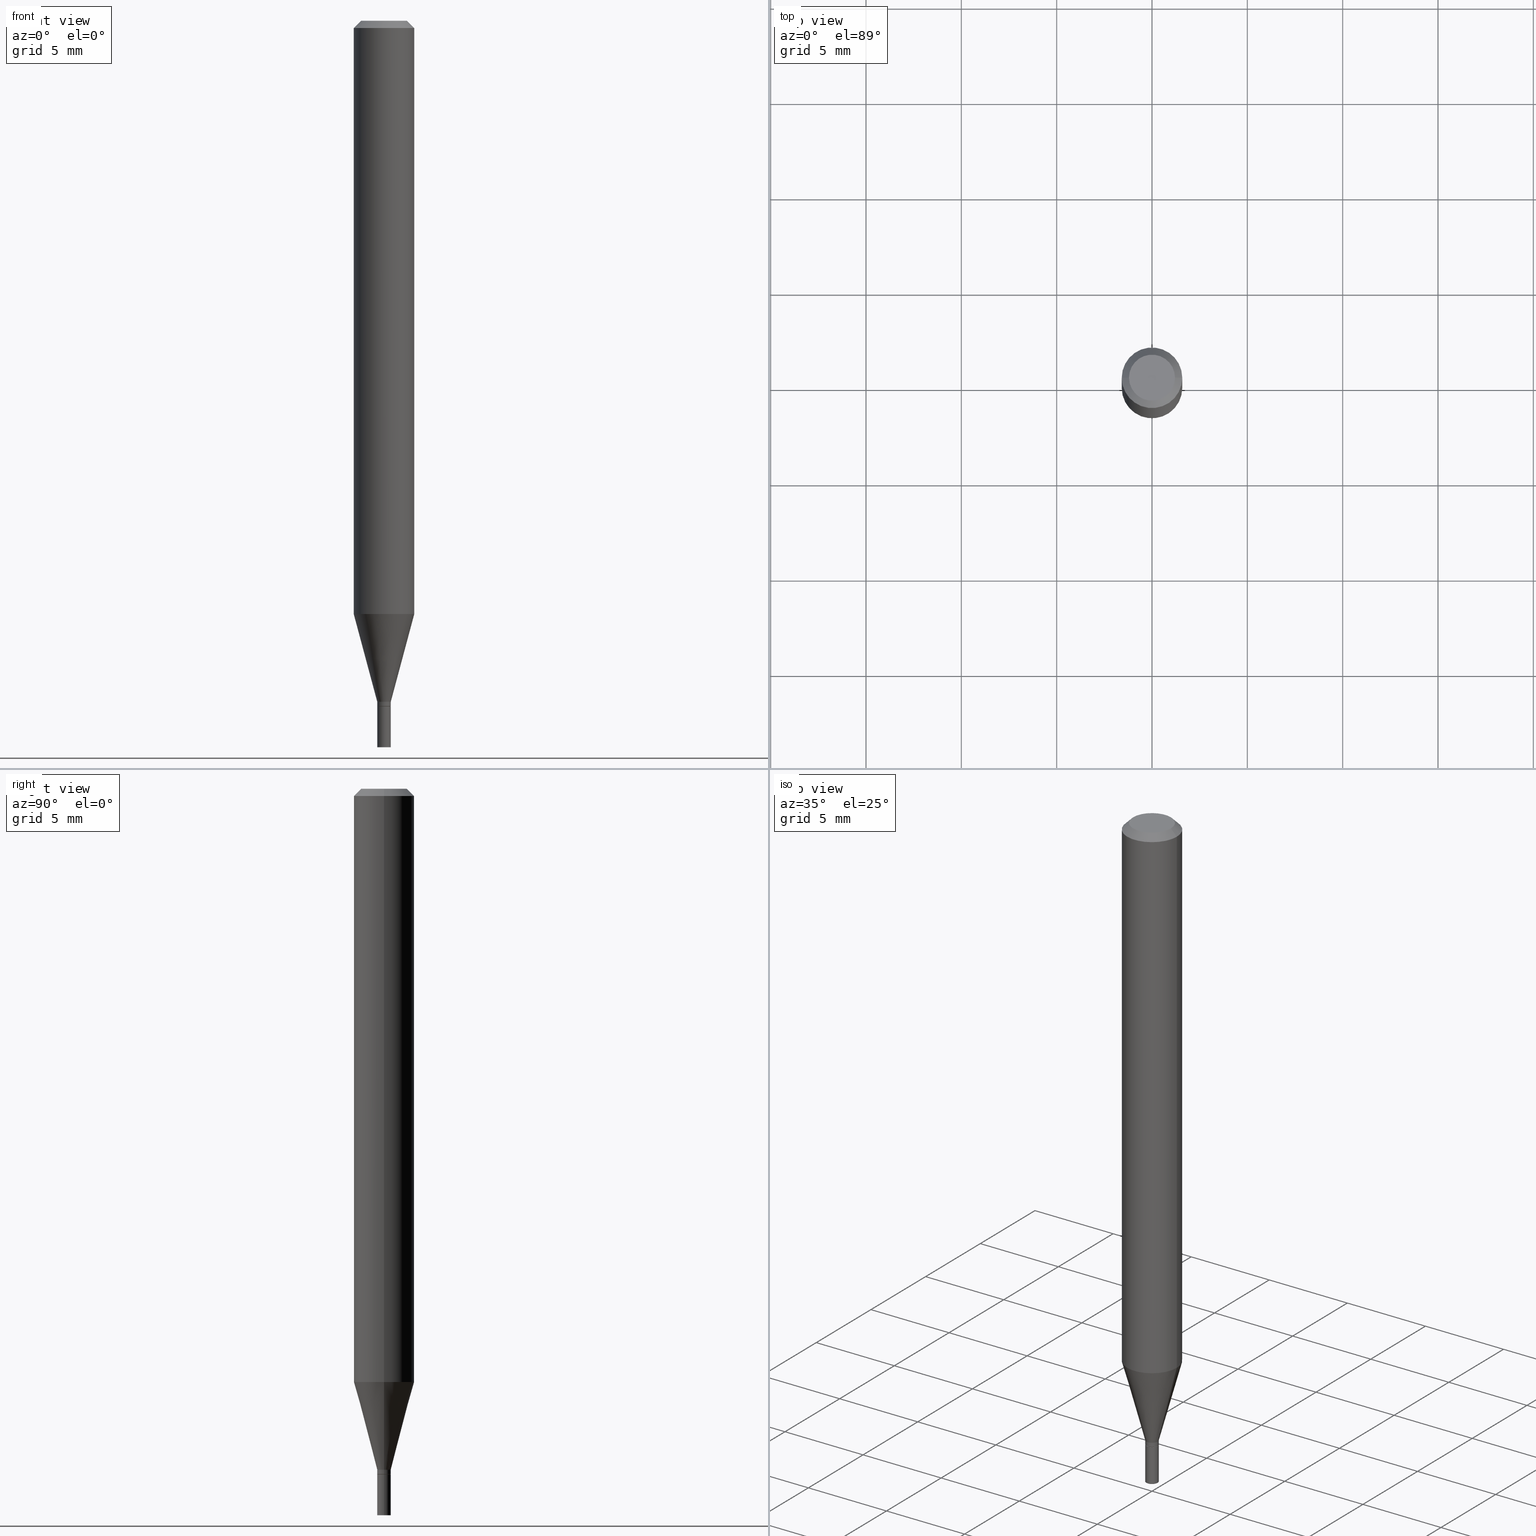
[diagram: canonical four-view strip — front | top / right | iso, engineering-drawing reading convention]
A machine part, canonical four-view strip (front | top / right | iso — engineering-drawing reading convention). The complete STEP part file that produces these views, byte-faithful:
ISO-10303-21;
HEADER;
FILE_DESCRIPTION (( 'STEP AP203' ),
    '1' );
FILE_NAME ('01179.STEP',
    '2024-03-19T23:42:54',
    ( '' ),
    ( '' ),
    'SwSTEP 2.0',
    'SolidWorks 2023',
    '' );
FILE_SCHEMA (( 'CONFIG_CONTROL_DESIGN' ));
ENDSEC;

DATA;
#1 = AXIS2_PLACEMENT_3D ( 'NONE', #114, #148, #203 ) ;
#2 = DIRECTION ( 'NONE',  ( 1.000000000000000000, -6.982962677686296687E-15, 0.000000000000000000 ) ) ;
#3 = ADVANCED_FACE ( 'NONE', ( #39 ), #116, .F. ) ;
#4 = CARTESIAN_POINT ( 'NONE',  ( -0.04749999999999999362, 3.578768372314205575E-16, -2.863788329398987133E-16 ) ) ;
#5 = ORIENTED_EDGE ( 'NONE', *, *, #105, .F. ) ;
#6 = APPROVAL_DATE_TIME ( #113, #305 ) ;
#7 = EDGE_CURVE ( 'NONE', #172, #240, #175, .T. ) ;
#8 = LINE ( 'NONE', #44, #34 ) ;
#9 = DATE_AND_TIME ( #35, #139 ) ;
#10 = CARTESIAN_POINT ( 'NONE',  ( -0.01400000000000000203, 9.947598300641404042E-17, -6.886509126356868606E-31 ) ) ;
#11 = CONICAL_SURFACE ( 'NONE', #334, 0.06250000000000000000, 0.7853981633974579379 ) ;
#12 = CARTESIAN_POINT ( 'NONE',  ( 0.000000000000000000, 0.000000000000000000, 0.000000000000000000 ) ) ;
#13 = CC_DESIGN_PERSON_AND_ORGANIZATION_ASSIGNMENT ( #463, #354, ( #444 ) ) ;
#14 = CARTESIAN_POINT ( 'NONE',  ( -0.06250000000000000000, -3.832959843676702294E-15, -1.224995535832909876 ) ) ;
#15 = DIRECTION ( 'NONE',  ( 0.7071067811865642261, -2.468850131082431399E-15, 0.7071067811865309194 ) ) ;
#16 = VERTEX_POINT ( 'NONE', #259 ) ;
#17 = AXIS2_PLACEMENT_3D ( 'NONE', #368, #71, #333 ) ;
#18 = AXIS2_PLACEMENT_3D ( 'NONE', #466, #399, #359 ) ;
#19 = EDGE_CURVE ( 'NONE', #153, #350, #237, .T. ) ;
#20 = CARTESIAN_POINT ( 'NONE',  ( 3.668203209277705088E-31, -5.237222008264718399E-17, -0.01499999999999999944 ) ) ;
#21 = ORIENTED_EDGE ( 'NONE', *, *, #219, .T. ) ;
#22 = CARTESIAN_POINT ( 'NONE',  ( -0.01399999999999992396, -4.842715852126059704E-15, -1.415500000000000203 ) ) ;
#23 = ORIENTED_EDGE ( 'NONE', *, *, #266, .F. ) ;
#24 = UNCERTAINTY_MEASURE_WITH_UNIT (LENGTH_MEASURE( 1.000000000000000082E-05 ), #241, 'distance_accuracy_value', 'NONE');
#25 = PLANE ( 'NONE',  #416 ) ;
#26 = ORIENTED_EDGE ( 'NONE', *, *, #142, .F. ) ;
#27 = AXIS2_PLACEMENT_3D ( 'NONE', #272, #346, #73 ) ;
#28 = CIRCLE ( 'NONE', #27, 0.01400000000000000203 ) ;
#29 = FACE_OUTER_BOUND ( 'NONE', #315, .T. ) ;
#30 = EDGE_CURVE ( 'NONE', #153, #240, #8, .T. ) ;
#31 = ORIENTED_EDGE ( 'NONE', *, *, #76, .F. ) ;
#32 = ORIENTED_EDGE ( 'NONE', *, *, #332, .F. ) ;
#33 = CONICAL_SURFACE ( 'NONE', #80, 0.06250000000000000000, 0.7853981633974579379 ) ;
#34 = VECTOR ( 'NONE', #402, 39.37007874015747433 ) ;
#35 = CALENDAR_DATE ( 2024, 19, 3 ) ;
#36 = DIRECTION ( 'NONE',  ( -2.445468806185136877E-29, 3.491481338843145188E-15, 1.000000000000000000 ) ) ;
#37 = DIRECTION ( 'NONE',  ( -2.445468806185136877E-29, 3.491481338843145188E-15, 1.000000000000000000 ) ) ;
#38 = DIRECTION ( 'NONE',  ( -2.445468806185136597E-29, 3.491481338843145583E-15, 1.000000000000000000 ) ) ;
#39 = FACE_OUTER_BOUND ( 'NONE', #61, .T. ) ;
#40 = CALENDAR_DATE ( 2024, 19, 3 ) ;
#41 = DIRECTION ( 'NONE',  ( -2.445468806185136597E-29, 3.491481338843145583E-15, 1.000000000000000000 ) ) ;
#42 = AXIS2_PLACEMENT_3D ( 'NONE', #112, #254, #397 ) ;
#43 = CONICAL_SURFACE ( 'NONE', #81, 0.01399999999999992223, 0.2617993877991500740 ) ;
#44 = CARTESIAN_POINT ( 'NONE',  ( -0.01399999999999992223, -4.809546779407050347E-15, -1.406000000000000139 ) ) ;
#45 =( NAMED_UNIT ( * ) SI_UNIT ( $, .STERADIAN. ) SOLID_ANGLE_UNIT ( ) );
#46 = CARTESIAN_POINT ( 'NONE',  ( -0.06250000000000000000, 4.440892098500626162E-16, -3.074334431409316114E-30 ) ) ;
#47 = APPLICATION_CONTEXT ( 'configuration controlled 3d designs of mechanical parts and assemblies' ) ;
#48 = CARTESIAN_POINT ( 'NONE',  ( 2.995688370595427801E-29, -4.277049053526764910E-15, -1.224995535832909876 ) ) ;
#49 = DIRECTION ( 'NONE',  ( 1.000000000000000000, -6.982962677686267499E-15, 4.852736867747366768E-29 ) ) ;
#50 = FACE_OUTER_BOUND ( 'NONE', #341, .T. ) ;
#51 = LINE ( 'NONE', #413, #432 ) ;
#52 = EDGE_LOOP ( 'NONE', ( #62, #127, #431, #162 ) ) ;
#53 = DIRECTION ( 'NONE',  ( -2.445468806185136597E-29, 3.491481338843145583E-15, 1.000000000000000000 ) ) ;
#54 = AXIS2_PLACEMENT_3D ( 'NONE', #12, #53, #163 ) ;
#55 = ADVANCED_FACE ( 'NONE', ( #187 ), #324, .T. ) ;
#56 = CC_DESIGN_SECURITY_CLASSIFICATION ( #302, ( #444 ) ) ;
#57 = DIRECTION ( 'NONE',  ( 1.000000000000000000, -6.982962677686232790E-15, 0.000000000000000000 ) ) ;
#58 = EDGE_CURVE ( 'NONE', #247, #375, #79, .T. ) ;
#59 = PRODUCT_RELATED_PRODUCT_CATEGORY ( 'detail', '', ( #90 ) ) ;
#60 = CARTESIAN_POINT ( 'NONE',  ( 0.06250000000000000000, -4.364351673553916694E-16, 3.047610484872459871E-30 ) ) ;
#61 = EDGE_LOOP ( 'NONE', ( #390, #394 ) ) ;
#62 = ORIENTED_EDGE ( 'NONE', *, *, #58, .F. ) ;
#63 = ORIENTED_EDGE ( 'NONE', *, *, #389, .T. ) ;
#64 = ADVANCED_BREP_SHAPE_REPRESENTATION ( '01179', ( #151, #456, #312 ), #245 ) ;
#65 = ORIENTED_EDGE ( 'NONE', *, *, #215, .T. ) ;
#66 = VERTEX_POINT ( 'NONE', #442 ) ;
#67 = APPROVAL_ROLE ( '' ) ;
#68 = DIRECTION ( 'NONE',  ( -2.445468806185136597E-29, 3.491481338843145583E-15, 1.000000000000000000 ) ) ;
#69 = VECTOR ( 'NONE', #299, 39.37007874015747433 ) ;
#70 = CC_DESIGN_APPROVAL ( #411, ( #444 ) ) ;
#71 = DIRECTION ( 'NONE',  ( -2.445468806185136597E-29, 3.491481338843145583E-15, 1.000000000000000000 ) ) ;
#72 = PERSON_AND_ORGANIZATION ( #387, #274 ) ;
#73 = DIRECTION ( 'NONE',  ( 1.000000000000000000, -6.982962677686262766E-15, 0.000000000000000000 ) ) ;
#74 = CARTESIAN_POINT ( 'NONE',  ( 7.003305027062207074E-45, -9.998863510493265527E-31, -2.863788329398962481E-16 ) ) ;
#75 = DIRECTION ( 'NONE',  ( 1.000000000000000000, -6.982962677686296687E-15, 0.000000000000000000 ) ) ;
#76 = EDGE_CURVE ( 'NONE', #129, #16, #366, .T. ) ;
#77 = DIRECTION ( 'NONE',  ( -2.445468806185136597E-29, 3.491481338843145583E-15, 1.000000000000000000 ) ) ;
#78 = COORDINATED_UNIVERSAL_TIME_OFFSET ( 5, 0, .BEHIND. ) ;
#79 = CIRCLE ( 'NONE', #137, 0.04749999999999999362 ) ;
#80 = AXIS2_PLACEMENT_3D ( 'NONE', #20, #345, #414 ) ;
#81 = AXIS2_PLACEMENT_3D ( 'NONE', #256, #380, #363 ) ;
#82 = DIRECTION ( 'NONE',  ( 1.000000000000000000, -6.982962677686266711E-15, 4.876176775795935232E-29 ) ) ;
#83 = APPLICATION_PROTOCOL_DEFINITION ( 'international standard', 'config_control_design', 1994, #94 ) ;
#84 = ORIENTED_EDGE ( 'NONE', *, *, #415, .T. ) ;
#85 = EDGE_CURVE ( 'NONE', #240, #168, #263, .T. ) ;
#86 = CARTESIAN_POINT ( 'NONE',  ( 3.462783829558154044E-29, -4.943937575801894533E-15, -1.416000000000000147 ) ) ;
#87 = CONICAL_SURFACE ( 'NONE', #147, 0.01399999999999992223, 0.2617993877991500740 ) ;
#88 = DIRECTION ( 'NONE',  ( 2.438088387897960049E-29, -3.491481338843145188E-15, -1.000000000000000000 ) ) ;
#89 = LOCAL_TIME ( 19, 42, 54.00000000000000000, #78 ) ;
#90 = PRODUCT ( '01179', '01179', '', ( #429 ) ) ;
#91 = CYLINDRICAL_SURFACE ( 'NONE', #54, 0.06250000000000000000 ) ;
#92 = ORIENTED_EDGE ( 'NONE', *, *, #210, .F. ) ;
#93 = DIRECTION ( 'NONE',  ( -2.445468806185136597E-29, 3.491481338843145583E-15, 1.000000000000000000 ) ) ;
#94 = APPLICATION_CONTEXT ( 'configuration controlled 3d designs of mechanical parts and assemblies' ) ;
#95 = LINE ( 'NONE', #408, #96 ) ;
#96 = VECTOR ( 'NONE', #450, 39.37007874015748854 ) ;
#97 = CARTESIAN_POINT ( 'NONE',  ( 0.000000000000000000, 0.000000000000000000, 0.000000000000000000 ) ) ;
#98 = ORIENTED_EDGE ( 'NONE', *, *, #58, .T. ) ;
#99 = CC_DESIGN_PERSON_AND_ORGANIZATION_ASSIGNMENT ( #398, #365, ( #302 ) ) ;
#100 = CARTESIAN_POINT ( 'NONE',  ( 0.000000000000000000, 0.000000000000000000, 0.000000000000000000 ) ) ;
#101 = VERTEX_POINT ( 'NONE', #122 ) ;
#102 = ADVANCED_FACE ( 'NONE', ( #284 ), #343, .T. ) ;
#103 = ORIENTED_EDGE ( 'NONE', *, *, #19, .T. ) ;
#104 = CIRCLE ( 'NONE', #404, 0.01350000000000000158 ) ;
#105 = EDGE_CURVE ( 'NONE', #455, #351, #433, .T. ) ;
#106 = ORIENTED_EDGE ( 'NONE', *, *, #182, .T. ) ;
#107 = CALENDAR_DATE ( 2024, 19, 3 ) ;
#108 = DIRECTION ( 'NONE',  ( -0.7071067811865542341, 2.468850131082328058E-15, -0.7071067811865405783 ) ) ;
#109 = ORIENTED_EDGE ( 'NONE', *, *, #85, .T. ) ;
#110 = APPROVAL_STATUS ( 'not_yet_approved' ) ;
#111 = CYLINDRICAL_SURFACE ( 'NONE', #1, 0.06250000000000000000 ) ;
#112 = CARTESIAN_POINT ( 'NONE',  ( 3.462783829558154044E-29, -4.943937575801894533E-15, -1.416000000000000147 ) ) ;
#113 = DATE_AND_TIME ( #188, #335 ) ;
#114 = CARTESIAN_POINT ( 'NONE',  ( 0.000000000000000000, 0.000000000000000000, 0.000000000000000000 ) ) ;
#115 = EDGE_CURVE ( 'NONE', #350, #153, #451, .T. ) ;
#116 = PLANE ( 'NONE',  #140 ) ;
#117 = ORIENTED_EDGE ( 'NONE', *, *, #403, .F. ) ;
#118 = DATE_AND_TIME ( #435, #252 ) ;
#119 = VECTOR ( 'NONE', #37, 39.37007874015748143 ) ;
#120 = DIRECTION ( 'NONE',  ( -2.445468806185136877E-29, 3.491481338843145188E-15, 1.000000000000000000 ) ) ;
#121 = EDGE_CURVE ( 'NONE', #240, #172, #278, .T. ) ;
#122 = CARTESIAN_POINT ( 'NONE',  ( -0.01350000000000000158, -4.845365079300170905E-15, -1.416000000000000147 ) ) ;
#123 = CC_DESIGN_DATE_AND_TIME_ASSIGNMENT ( #118, #213, ( #302 ) ) ;
#124 = DIRECTION ( 'NONE',  ( 1.000000000000000000, -6.982962677686296687E-15, 0.000000000000000000 ) ) ;
#125 = CIRCLE ( 'NONE', #205, 0.01400000000000000203 ) ;
#126 = DIRECTION ( 'NONE',  ( -2.445468806185136597E-29, 3.491481338843145583E-15, 1.000000000000000000 ) ) ;
#127 = ORIENTED_EDGE ( 'NONE', *, *, #309, .T. ) ;
#128 = DIRECTION ( 'NONE',  ( -2.445468806185136597E-29, 3.491481338843145583E-15, 1.000000000000000000 ) ) ;
#129 = VERTEX_POINT ( 'NONE', #156 ) ;
#130 = FACE_OUTER_BOUND ( 'NONE', #149, .T. ) ;
#131 = CARTESIAN_POINT ( 'NONE',  ( -0.06250000000000000000, -1.720621426954643378E-15, -0.01499999999999999944 ) ) ;
#132 = ORIENTED_EDGE ( 'NONE', *, *, #85, .F. ) ;
#133 = AXIS2_PLACEMENT_3D ( 'NONE', #209, #38, #249 ) ;
#134 = FACE_OUTER_BOUND ( 'NONE', #206, .T. ) ;
#135 = DIRECTION ( 'NONE',  ( -2.445468806185136597E-29, 3.491481338843145583E-15, 1.000000000000000000 ) ) ;
#136 = EDGE_LOOP ( 'NONE', ( #465, #103, #191, #384 ) ) ;
#137 = AXIS2_PLACEMENT_3D ( 'NONE', #437, #77, #223 ) ;
#138 = AXIS2_PLACEMENT_3D ( 'NONE', #74, #126, #49 ) ;
#139 = LOCAL_TIME ( 19, 42, 54.00000000000000000, #320 ) ;
#140 = AXIS2_PLACEMENT_3D ( 'NONE', #296, #448, #364 ) ;
#141 = ADVANCED_FACE ( 'NONE', ( #212 ), #357, .F. ) ;
#142 = EDGE_CURVE ( 'NONE', #375, #247, #310, .T. ) ;
#143 = DIRECTION ( 'NONE',  ( 1.000000000000000000, -6.982962677686301420E-15, 0.000000000000000000 ) ) ;
#144 = ORIENTED_EDGE ( 'NONE', *, *, #115, .T. ) ;
#145 = CC_DESIGN_DATE_AND_TIME_ASSIGNMENT ( #9, #438, ( #270 ) ) ;
#146 = APPROVAL_STATUS ( 'not_yet_approved' ) ;
#147 = AXIS2_PLACEMENT_3D ( 'NONE', #197, #344, #57 ) ;
#148 = DIRECTION ( 'NONE',  ( -2.445468806185136597E-29, 3.491481338843145583E-15, 1.000000000000000000 ) ) ;
#149 = EDGE_LOOP ( 'NONE', ( #273, #26, #63, #428 ) ) ;
#150 = DIRECTION ( 'NONE',  ( -2.445468806185136597E-29, 3.491481338843145583E-15, 1.000000000000000000 ) ) ;
#151 = MANIFOLD_SOLID_BREP ( 'Body-Move/Copy2[1]', #222 ) ;
#152 = PERSON_AND_ORGANIZATION ( #387, #274 ) ;
#153 = VERTEX_POINT ( 'NONE', #231 ) ;
#154 = AXIS2_PLACEMENT_3D ( 'NONE', #349, #68, #283 ) ;
#155 = LOCAL_TIME ( 19, 42, 54.00000000000000000, #426 ) ;
#156 = CARTESIAN_POINT ( 'NONE',  ( 0.01400000000000000203, -5.334983485752326321E-15, -1.500000000000000222 ) ) ;
#157 = AXIS2_PLACEMENT_3D ( 'NONE', #328, #330, #183 ) ;
#158 = LINE ( 'NONE', #452, #196 ) ;
#159 = FACE_OUTER_BOUND ( 'NONE', #202, .T. ) ;
#160 = AXIS2_PLACEMENT_3D ( 'NONE', #186, #217, #143 ) ;
#161 = CARTESIAN_POINT ( 'NONE',  ( 0.06250000000000000000, -4.713484220882155791E-15, -1.224995535832909876 ) ) ;
#162 = ORIENTED_EDGE ( 'NONE', *, *, #389, .F. ) ;
#163 = DIRECTION ( 'NONE',  ( 1.000000000000000000, -6.982962677686266711E-15, 4.876176775795935793E-29 ) ) ;
#164 = EDGE_CURVE ( 'NONE', #350, #172, #192, .T. ) ;
#165 = CARTESIAN_POINT ( 'NONE',  ( 3.462783829558154044E-29, -4.943937575801894533E-15, -1.416000000000000147 ) ) ;
#166 = VERTEX_POINT ( 'NONE', #22 ) ;
#167 =( LENGTH_UNIT ( ) NAMED_UNIT ( * ) SI_UNIT ( $, .METRE. ) );
#168 = VERTEX_POINT ( 'NONE', #131 ) ;
#169 = AXIS2_PLACEMENT_3D ( 'NONE', #48, #400, #218 ) ;
#170 = APPROVAL_PERSON_ORGANIZATION ( #152, #305, #67 ) ;
#171 = CARTESIAN_POINT ( 'NONE',  ( 9.776147748764236100E-17, 0.01399999999999505806, -1.416000000000000147 ) ) ;
#172 = VERTEX_POINT ( 'NONE', #161 ) ;
#173 = ORIENTED_EDGE ( 'NONE', *, *, #410, .T. ) ;
#174 = ORIENTED_EDGE ( 'NONE', *, *, #7, .T. ) ;
#175 = CIRCLE ( 'NONE', #445, 0.06250000000000000000 ) ;
#176 = VERTEX_POINT ( 'NONE', #303 ) ;
#177 = PERSON_AND_ORGANIZATION ( #387, #274 ) ;
#178 = LINE ( 'NONE', #422, #271 ) ;
#179 = DIRECTION ( 'NONE',  ( -2.445468806185136597E-29, 3.491481338843145583E-15, 1.000000000000000000 ) ) ;
#180 =( NAMED_UNIT ( * ) PLANE_ANGLE_UNIT ( ) SI_UNIT ( $, .RADIAN. ) );
#181 = CARTESIAN_POINT ( 'NONE',  ( -0.01400000000000000203, -4.991103809026892241E-15, -1.500000000000000222 ) ) ;
#182 = EDGE_CURVE ( 'NONE', #337, #66, #158, .T. ) ;
#183 = DIRECTION ( 'NONE',  ( 1.000000000000000000, -6.982962677686232790E-15, 0.000000000000000000 ) ) ;
#184 = SECURITY_CLASSIFICATION_LEVEL ( 'unclassified' ) ;
#185 = CIRCLE ( 'NONE', #18, 0.06250000000000000000 ) ;
#186 = CARTESIAN_POINT ( 'NONE',  ( 3.461561095155061243E-29, -4.942191835132473030E-15, -1.415500000000000203 ) ) ;
#187 = FACE_OUTER_BOUND ( 'NONE', #376, .T. ) ;
#188 = CALENDAR_DATE ( 2024, 19, 3 ) ;
#189 = EDGE_CURVE ( 'NONE', #168, #176, #385, .T. ) ;
#190 = ORIENTED_EDGE ( 'NONE', *, *, #189, .F. ) ;
#191 = ORIENTED_EDGE ( 'NONE', *, *, #164, .T. ) ;
#192 = LINE ( 'NONE', #232, #69 ) ;
#193 = ORIENTED_EDGE ( 'NONE', *, *, #182, .F. ) ;
#194 = DIRECTION ( 'NONE',  ( 2.445468806185136597E-29, -3.491481338843145583E-15, -1.000000000000000000 ) ) ;
#195 = FACE_OUTER_BOUND ( 'NONE', #388, .T. ) ;
#196 = VECTOR ( 'NONE', #15, 39.37007874015748143 ) ;
#197 = CARTESIAN_POINT ( 'NONE',  ( 3.438329141496302499E-29, -4.909022762413463673E-15, -1.406000000000000139 ) ) ;
#198 = CC_DESIGN_APPROVAL ( #369, ( #302 ) ) ;
#199 = DIRECTION ( 'NONE',  ( -2.445468806185136597E-29, 3.491481338843145583E-15, 1.000000000000000000 ) ) ;
#200 = ADVANCED_FACE ( 'NONE', ( #300 ), #395, .T. ) ;
#201 = DIRECTION ( 'NONE',  ( 2.438088387897960049E-29, -3.491481338843145188E-15, -1.000000000000000000 ) ) ;
#202 = EDGE_LOOP ( 'NONE', ( #173, #423, #228, #31 ) ) ;
#203 = DIRECTION ( 'NONE',  ( 1.000000000000000000, -6.982962677686266711E-15, 4.876176775795935793E-29 ) ) ;
#204 = ORIENTED_EDGE ( 'NONE', *, *, #415, .F. ) ;
#205 = AXIS2_PLACEMENT_3D ( 'NONE', #327, #135, #239 ) ;
#206 = EDGE_LOOP ( 'NONE', ( #243, #322, #268, #289 ) ) ;
#207 = ORIENTED_EDGE ( 'NONE', *, *, #164, .F. ) ;
#208 = DIRECTION ( 'NONE',  ( 1.000000000000000000, 0.000000000000000000, 0.000000000000000000 ) ) ;
#209 = CARTESIAN_POINT ( 'NONE',  ( 3.461561095155061243E-29, -4.942191835132473030E-15, -1.415500000000000203 ) ) ;
#210 = EDGE_CURVE ( 'NONE', #166, #153, #379, .T. ) ;
#211 = ORIENTED_EDGE ( 'NONE', *, *, #339, .T. ) ;
#212 = FACE_OUTER_BOUND ( 'NONE', #316, .T. ) ;
#213 = DATE_TIME_ROLE ( 'classification_date' ) ;
#214 = DIRECTION ( 'NONE',  ( 1.000000000000000000, -6.982962677686265922E-15, 4.876176775795935793E-29 ) ) ;
#215 = EDGE_CURVE ( 'NONE', #66, #350, #51, .T. ) ;
#216 = CARTESIAN_POINT ( 'NONE',  ( 0.01400000000000000203, -9.776147748760774973E-17, 6.826647486114310706E-31 ) ) ;
#217 = DIRECTION ( 'NONE',  ( -2.445468806185136597E-29, 3.491481338843145583E-15, 1.000000000000000000 ) ) ;
#218 = DIRECTION ( 'NONE',  ( 1.000000000000000000, -6.982962677686270655E-15, 0.000000000000000000 ) ) ;
#219 = EDGE_CURVE ( 'NONE', #455, #129, #251, .T. ) ;
#220 = APPROVAL_DATE_TIME ( #286, #411 ) ;
#221 = VECTOR ( 'NONE', #336, 39.37007874015748143 ) ;
#222 = CLOSED_SHELL ( 'NONE', ( #319, #3, #55, #386 ) ) ;
#223 = DIRECTION ( 'NONE',  ( 1.000000000000000000, -6.982962677686267499E-15, 4.852736867747366768E-29 ) ) ;
#224 = APPROVAL_ROLE ( '' ) ;
#225 = CARTESIAN_POINT ( 'NONE',  ( 2.995688370595427801E-29, -4.277049053526764910E-15, -1.224995535832909876 ) ) ;
#226 = ADVANCED_FACE ( 'NONE', ( #374 ), #412, .F. ) ;
#227 = DIRECTION ( 'NONE',  ( -2.445468806185136597E-29, 3.491481338843145583E-15, 1.000000000000000000 ) ) ;
#228 = ORIENTED_EDGE ( 'NONE', *, *, #392, .F. ) ;
#229 = CIRCLE ( 'NONE', #133, 0.01399999999999992396 ) ;
#230 = CIRCLE ( 'NONE', #160, 0.01399999999999992396 ) ;
#231 = CARTESIAN_POINT ( 'NONE',  ( -0.01399999999999992223, -4.321253311541875926E-15, -1.406000000000000139 ) ) ;
#232 = CARTESIAN_POINT ( 'NONE',  ( 0.01399999999999992223, -5.006784239901070239E-15, -1.406000000000000139 ) ) ;
#233 = DIRECTION ( 'NONE',  ( 1.000000000000000000, -6.982962677686262766E-15, 0.000000000000000000 ) ) ;
#234 = ORIENTED_EDGE ( 'NONE', *, *, #292, .F. ) ;
#235 = VECTOR ( 'NONE', #120, 39.37007874015748143 ) ;
#236 = CYLINDRICAL_SURFACE ( 'NONE', #154, 0.01400000000000000203 ) ;
#237 = CIRCLE ( 'NONE', #157, 0.01399999999999992223 ) ;
#238 = CC_DESIGN_PERSON_AND_ORGANIZATION_ASSIGNMENT ( #391, #362, ( #90 ) ) ;
#239 = DIRECTION ( 'NONE',  ( 1.000000000000000000, -6.982962677686262766E-15, 0.000000000000000000 ) ) ;
#240 = VERTEX_POINT ( 'NONE', #14 ) ;
#241 =( CONVERSION_BASED_UNIT ( 'INCH', #287 ) LENGTH_UNIT ( ) NAMED_UNIT ( #462 ) );
#242 = CARTESIAN_POINT ( 'NONE',  ( 0.01350000000000000158, -5.038207571950659670E-15, -1.416000000000000147 ) ) ;
#243 = ORIENTED_EDGE ( 'NONE', *, *, #403, .T. ) ;
#244 = AXIS2_PLACEMENT_3D ( 'NONE', #165, #199, #267 ) ;
#245 =( GEOMETRIC_REPRESENTATION_CONTEXT ( 3 ) GLOBAL_UNCERTAINTY_ASSIGNED_CONTEXT ( ( #24 ) ) GLOBAL_UNIT_ASSIGNED_CONTEXT ( ( #241, #180, #45 ) ) REPRESENTATION_CONTEXT ( 'NONE', 'WORKASPACE' ) );
#246 = ORIENTED_EDGE ( 'NONE', *, *, #19, .F. ) ;
#247 = VERTEX_POINT ( 'NONE', #454 ) ;
#248 = DATE_AND_TIME ( #107, #155 ) ;
#249 = DIRECTION ( 'NONE',  ( 1.000000000000000000, -6.982962677686301420E-15, 0.000000000000000000 ) ) ;
#250 = EDGE_LOOP ( 'NONE', ( #458, #461 ) ) ;
#251 = CIRCLE ( 'NONE', #443, 0.01400000000000000203 ) ;
#252 = LOCAL_TIME ( 19, 42, 54.00000000000000000, #295 ) ;
#253 = CYLINDRICAL_SURFACE ( 'NONE', #325, 0.01399999999999992223 ) ;
#254 = DIRECTION ( 'NONE',  ( -2.438088387897960049E-29, 3.491481338843145188E-15, 1.000000000000000000 ) ) ;
#255 = PERSON_AND_ORGANIZATION ( #387, #274 ) ;
#256 = CARTESIAN_POINT ( 'NONE',  ( 3.438329141496302499E-29, -4.909022762413463673E-15, -1.406000000000000139 ) ) ;
#257 = ADVANCED_FACE ( 'NONE', ( #50 ), #91, .T. ) ;
#258 = DIRECTION ( 'NONE',  ( -2.445468806185136877E-29, 3.491481338843145188E-15, 1.000000000000000000 ) ) ;
#259 = CARTESIAN_POINT ( 'NONE',  ( 0.01400000000000000203, -5.041699053289501888E-15, -1.416000000000000147 ) ) ;
#260 = APPROVAL_STATUS ( 'not_yet_approved' ) ;
#261 = AXIS2_PLACEMENT_3D ( 'NONE', #370, #88, #377 ) ;
#262 = CARTESIAN_POINT ( 'NONE',  ( 3.462783829558154044E-29, -4.943937575801894533E-15, -1.416000000000000147 ) ) ;
#263 = LINE ( 'NONE', #46, #235 ) ;
#264 = FACE_OUTER_BOUND ( 'NONE', #52, .T. ) ;
#265 = DIRECTION ( 'NONE',  ( -2.445468806185136877E-29, 3.491481338843145188E-15, 1.000000000000000000 ) ) ;
#266 = EDGE_CURVE ( 'NONE', #351, #16, #409, .T. ) ;
#267 = DIRECTION ( 'NONE',  ( 1.000000000000000000, -6.982962677686296687E-15, 0.000000000000000000 ) ) ;
#268 = ORIENTED_EDGE ( 'NONE', *, *, #115, .F. ) ;
#269 = CARTESIAN_POINT ( 'NONE',  ( 3.668203209277705088E-31, -5.237222008264718399E-17, -0.01499999999999999944 ) ) ;
#270 = PRODUCT_DEFINITION ( 'UNKNOWN', '', #444, #347 ) ;
#271 = VECTOR ( 'NONE', #108, 39.37007874015748854 ) ;
#272 = CARTESIAN_POINT ( 'NONE',  ( 3.668203209277704895E-29, -5.237222008264718177E-15, -1.500000000000000222 ) ) ;
#273 = ORIENTED_EDGE ( 'NONE', *, *, #309, .F. ) ;
#274 = ORGANIZATION ( 'UNSPECIFIED', 'UNSPECIFIED', '' ) ;
#275 = ADVANCED_FACE ( 'NONE', ( #195 ), #87, .T. ) ;
#276 = DIRECTION ( 'NONE',  ( -2.445468806185136597E-29, 3.491481338843145583E-15, 1.000000000000000000 ) ) ;
#277 = LINE ( 'NONE', #60, #297 ) ;
#278 = CIRCLE ( 'NONE', #169, 0.06250000000000000000 ) ;
#279 = CLOSED_SHELL ( 'NONE', ( #352, #200, #304, #257, #275, #424, #382, #291, #226, #141, #102, #418 ) ) ;
#280 = APPROVAL_ROLE ( '' ) ;
#281 = ORIENTED_EDGE ( 'NONE', *, *, #356, .T. ) ;
#282 = APPROVAL_DATE_TIME ( #248, #369 ) ;
#283 = DIRECTION ( 'NONE',  ( 1.000000000000000000, -6.982962677686266711E-15, 4.876176775795935232E-29 ) ) ;
#284 = FACE_OUTER_BOUND ( 'NONE', #381, .T. ) ;
#285 = VECTOR ( 'NONE', #393, 39.37007874015748143 ) ;
#286 = DATE_AND_TIME ( #40, #89 ) ;
#287 = LENGTH_MEASURE_WITH_UNIT ( LENGTH_MEASURE( 0.02539999999999999897 ), #167 );
#288 = CARTESIAN_POINT ( 'NONE',  ( 3.462783829558154044E-29, -4.943937575801894533E-15, -1.416000000000000147 ) ) ;
#289 = ORIENTED_EDGE ( 'NONE', *, *, #215, .F. ) ;
#290 = COORDINATED_UNIVERSAL_TIME_OFFSET ( 5, 0, .BEHIND. ) ;
#291 = ADVANCED_FACE ( 'NONE', ( #130 ), #33, .T. ) ;
#292 = EDGE_CURVE ( 'NONE', #337, #101, #301, .T. ) ;
#293 = ORIENTED_EDGE ( 'NONE', *, *, #339, .F. ) ;
#294 = DIRECTION ( 'NONE',  ( 1.000000000000000000, -6.982962677686270655E-15, 0.000000000000000000 ) ) ;
#295 = COORDINATED_UNIVERSAL_TIME_OFFSET ( 5, 0, .BEHIND. ) ;
#296 = CARTESIAN_POINT ( 'NONE',  ( 3.584916967085606921E-29, -5.356492647442320375E-15, -1.500000000000000222 ) ) ;
#297 = VECTOR ( 'NONE', #36, 39.37007874015748143 ) ;
#298 = CARTESIAN_POINT ( 'NONE',  ( 0.000000000000000000, 0.000000000000000000, 0.000000000000000000 ) ) ;
#299 = DIRECTION ( 'NONE',  ( 0.2588190451025213501, 1.565188264969621968E-15, 0.9659258262890682012 ) ) ;
#300 = FACE_OUTER_BOUND ( 'NONE', #360, .T. ) ;
#301 = CIRCLE ( 'NONE', #372, 0.01350000000000000158 ) ;
#302 = SECURITY_CLASSIFICATION ( '', '', #184 ) ;
#303 = CARTESIAN_POINT ( 'NONE',  ( 0.06250000000000000000, -4.888073874380388472E-16, -0.01499999999999999944 ) ) ;
#304 = ADVANCED_FACE ( 'NONE', ( #264 ), #11, .T. ) ;
#305 = APPROVAL ( #146, 'UNSPECIFIED' ) ;
#306 = CARTESIAN_POINT ( 'NONE',  ( 3.462783829558154044E-29, -4.943937575801894533E-15, -1.416000000000000147 ) ) ;
#307 = CARTESIAN_POINT ( 'NONE',  ( 3.668203209277705088E-31, -5.237222008264718399E-17, -0.01499999999999999944 ) ) ;
#308 = ORIENTED_EDGE ( 'NONE', *, *, #30, .T. ) ;
#309 = EDGE_CURVE ( 'NONE', #247, #176, #95, .T. ) ;
#310 = CIRCLE ( 'NONE', #138, 0.04749999999999999362 ) ;
#311 = ORIENTED_EDGE ( 'NONE', *, *, #142, .T. ) ;
#312 = AXIS2_PLACEMENT_3D ( 'NONE', #329, #323, #208 ) ;
#313 = CYLINDRICAL_SURFACE ( 'NONE', #425, 0.01399999999999992223 ) ;
#314 = ORIENTED_EDGE ( 'NONE', *, *, #7, .F. ) ;
#315 = EDGE_LOOP ( 'NONE', ( #132, #439, #281, #190 ) ) ;
#316 = EDGE_LOOP ( 'NONE', ( #234, #32 ) ) ;
#317 = AXIS2_PLACEMENT_3D ( 'NONE', #262, #406, #2 ) ;
#318 = APPROVAL_PERSON_ORGANIZATION ( #72, #411, #280 ) ;
#319 = ADVANCED_FACE ( 'NONE', ( #159 ), #236, .T. ) ;
#320 = COORDINATED_UNIVERSAL_TIME_OFFSET ( 5, 0, .BEHIND. ) ;
#321 = DIRECTION ( 'NONE',  ( -1.000000000000000000, 6.982962677686265922E-15, -4.876176775795935793E-29 ) ) ;
#322 = ORIENTED_EDGE ( 'NONE', *, *, #210, .T. ) ;
#323 = DIRECTION ( 'NONE',  ( 0.000000000000000000, 0.000000000000000000, 1.000000000000000000 ) ) ;
#324 = CYLINDRICAL_SURFACE ( 'NONE', #342, 0.01400000000000000203 ) ;
#325 = AXIS2_PLACEMENT_3D ( 'NONE', #100, #276, #214 ) ;
#326 = CC_DESIGN_APPROVAL ( #305, ( #270 ) ) ;
#327 = CARTESIAN_POINT ( 'NONE',  ( 3.462783829558154044E-29, -4.943937575801894533E-15, -1.416000000000000147 ) ) ;
#328 = CARTESIAN_POINT ( 'NONE',  ( 3.438329141496302499E-29, -4.909022762413463673E-15, -1.406000000000000139 ) ) ;
#329 = CARTESIAN_POINT ( 'NONE',  ( 0.000000000000000000, 0.000000000000000000, 0.000000000000000000 ) ) ;
#330 = DIRECTION ( 'NONE',  ( -2.445468806185136597E-29, 3.491481338843145583E-15, 1.000000000000000000 ) ) ;
#331 = PERSON_AND_ORGANIZATION_ROLE ( 'creator' ) ;
#332 = EDGE_CURVE ( 'NONE', #101, #337, #104, .T. ) ;
#333 = DIRECTION ( 'NONE',  ( 1.000000000000000000, -6.982962677686232790E-15, 0.000000000000000000 ) ) ;
#334 = AXIS2_PLACEMENT_3D ( 'NONE', #269, #194, #338 ) ;
#335 = LOCAL_TIME ( 19, 42, 54.00000000000000000, #290 ) ;
#336 = DIRECTION ( 'NONE',  ( -2.445468806185136877E-29, 3.491481338843145188E-15, 1.000000000000000000 ) ) ;
#337 = VERTEX_POINT ( 'NONE', #242 ) ;
#338 = DIRECTION ( 'NONE',  ( -1.000000000000000000, 6.982962677686266711E-15, 0.000000000000000000 ) ) ;
#339 = EDGE_CURVE ( 'NONE', #166, #66, #230, .T. ) ;
#340 = CARTESIAN_POINT ( 'NONE',  ( 3.668203209277704895E-29, -5.237222008264718177E-15, -1.500000000000000222 ) ) ;
#341 = EDGE_LOOP ( 'NONE', ( #174, #109, #371, #427 ) ) ;
#342 = AXIS2_PLACEMENT_3D ( 'NONE', #298, #179, #82 ) ;
#343 = CONICAL_SURFACE ( 'NONE', #317, 0.01350000000000000158, 0.7853981633974718157 ) ;
#344 = DIRECTION ( 'NONE',  ( -2.445468806185136597E-29, 3.491481338843145583E-15, 1.000000000000000000 ) ) ;
#345 = DIRECTION ( 'NONE',  ( 2.445468806185136597E-29, -3.491481338843145583E-15, -1.000000000000000000 ) ) ;
#346 = DIRECTION ( 'NONE',  ( -2.445468806185136597E-29, 3.491481338843145583E-15, 1.000000000000000000 ) ) ;
#347 = DESIGN_CONTEXT ( 'detailed design', #94, 'design' ) ;
#348 = AXIS2_PLACEMENT_3D ( 'NONE', #306, #449, #373 ) ;
#349 = CARTESIAN_POINT ( 'NONE',  ( 0.000000000000000000, 0.000000000000000000, 0.000000000000000000 ) ) ;
#350 = VERTEX_POINT ( 'NONE', #383 ) ;
#351 = VERTEX_POINT ( 'NONE', #430 ) ;
#352 = ADVANCED_FACE ( 'NONE', ( #134 ), #313, .T. ) ;
#353 = EDGE_LOOP ( 'NONE', ( #92, #211, #65, #246 ) ) ;
#354 = PERSON_AND_ORGANIZATION_ROLE ( 'design_supplier' ) ;
#355 = DIRECTION ( 'NONE',  ( 1.000000000000000000, -6.982962677686265922E-15, 4.876176775795935793E-29 ) ) ;
#356 = EDGE_CURVE ( 'NONE', #172, #176, #277, .T. ) ;
#357 = PLANE ( 'NONE',  #42 ) ;
#358 = SHAPE_DEFINITION_REPRESENTATION ( #361, #64 ) ;
#359 = DIRECTION ( 'NONE',  ( 1.000000000000000000, -6.982962677686266711E-15, 0.000000000000000000 ) ) ;
#360 = EDGE_LOOP ( 'NONE', ( #447, #84, #117, #193 ) ) ;
#361 = PRODUCT_DEFINITION_SHAPE ( 'NONE', 'NONE',  #270 ) ;
#362 = PERSON_AND_ORGANIZATION_ROLE ( 'design_owner' ) ;
#363 = DIRECTION ( 'NONE',  ( 1.000000000000000000, -6.982962677686232790E-15, 0.000000000000000000 ) ) ;
#364 = DIRECTION ( 'NONE',  ( 1.000000000000000000, -6.982962677686265922E-15, 4.876176775795935793E-29 ) ) ;
#365 = PERSON_AND_ORGANIZATION_ROLE ( 'classification_officer' ) ;
#366 = LINE ( 'NONE', #216, #401 ) ;
#367 = PERSON_AND_ORGANIZATION ( #387, #274 ) ;
#368 = CARTESIAN_POINT ( 'NONE',  ( 3.438329141496302499E-29, -4.909022762413463673E-15, -1.406000000000000139 ) ) ;
#369 = APPROVAL ( #260, 'UNSPECIFIED' ) ;
#370 = CARTESIAN_POINT ( 'NONE',  ( 3.316907271900976096E-16, 0.04749999999999999362, -3.090347800649974958E-16 ) ) ;
#371 = ORIENTED_EDGE ( 'NONE', *, *, #441, .F. ) ;
#372 = AXIS2_PLACEMENT_3D ( 'NONE', #86, #227, #124 ) ;
#373 = DIRECTION ( 'NONE',  ( 1.000000000000000000, -6.982962677686262766E-15, 0.000000000000000000 ) ) ;
#374 = FACE_OUTER_BOUND ( 'NONE', #460, .T. ) ;
#375 = VERTEX_POINT ( 'NONE', #4 ) ;
#376 = EDGE_LOOP ( 'NONE', ( #5, #21, #421, #23 ) ) ;
#377 = DIRECTION ( 'NONE',  ( -1.000000000000000000, 6.982962677686265922E-15, -4.876176775795935793E-29 ) ) ;
#378 = AXIS2_PLACEMENT_3D ( 'NONE', #307, #128, #407 ) ;
#379 = LINE ( 'NONE', #453, #221 ) ;
#380 = DIRECTION ( 'NONE',  ( -2.445468806185136597E-29, 3.491481338843145583E-15, 1.000000000000000000 ) ) ;
#381 = EDGE_LOOP ( 'NONE', ( #204, #446, #106, #293 ) ) ;
#382 = ADVANCED_FACE ( 'NONE', ( #29 ), #111, .T. ) ;
#383 = CARTESIAN_POINT ( 'NONE',  ( 0.01399999999999992223, -5.006784239901070239E-15, -1.406000000000000139 ) ) ;
#384 = ORIENTED_EDGE ( 'NONE', *, *, #121, .F. ) ;
#385 = CIRCLE ( 'NONE', #378, 0.06250000000000000000 ) ;
#386 = ADVANCED_FACE ( 'NONE', ( #457 ), #25, .F. ) ;
#387 = PERSON ( 'UNSPECIFIED', 'UNSPECIFIED', 'UNSPECIFIED', ('UNSPECIFIED'), ('UNSPECIFIED'), ('UNSPECIFIED') ) ;
#388 = EDGE_LOOP ( 'NONE', ( #144, #308, #314, #207 ) ) ;
#389 = EDGE_CURVE ( 'NONE', #375, #168, #178, .T. ) ;
#390 = ORIENTED_EDGE ( 'NONE', *, *, #410, .F. ) ;
#391 = PERSON_AND_ORGANIZATION ( #387, #274 ) ;
#392 = EDGE_CURVE ( 'NONE', #16, #351, #125, .T. ) ;
#393 = DIRECTION ( 'NONE',  ( -0.7071067811865642261, 7.493145998870414114E-15, 0.7071067811865309194 ) ) ;
#394 = ORIENTED_EDGE ( 'NONE', *, *, #219, .F. ) ;
#395 = CONICAL_SURFACE ( 'NONE', #244, 0.01350000000000000158, 0.7853981633974718157 ) ;
#396 = FACE_OUTER_BOUND ( 'NONE', #136, .T. ) ;
#397 = DIRECTION ( 'NONE',  ( 1.000000000000000000, -6.982962677686265922E-15, 4.876176775795935793E-29 ) ) ;
#398 = PERSON_AND_ORGANIZATION ( #387, #274 ) ;
#399 = DIRECTION ( 'NONE',  ( -2.445468806185136597E-29, 3.491481338843145583E-15, 1.000000000000000000 ) ) ;
#400 = DIRECTION ( 'NONE',  ( -2.445468806185136597E-29, 3.491481338843145583E-15, 1.000000000000000000 ) ) ;
#401 = VECTOR ( 'NONE', #258, 39.37007874015748143 ) ;
#402 = DIRECTION ( 'NONE',  ( -0.2588190451025213501, 5.211531920934551042E-15, 0.9659258262890682012 ) ) ;
#403 = EDGE_CURVE ( 'NONE', #66, #166, #229, .T. ) ;
#404 = AXIS2_PLACEMENT_3D ( 'NONE', #288, #41, #75 ) ;
#405 = APPLICATION_PROTOCOL_DEFINITION ( 'international standard', 'config_control_design', 1994, #47 ) ;
#406 = DIRECTION ( 'NONE',  ( -2.445468806185136597E-29, 3.491481338843145583E-15, 1.000000000000000000 ) ) ;
#407 = DIRECTION ( 'NONE',  ( 1.000000000000000000, -6.982962677686266711E-15, 0.000000000000000000 ) ) ;
#408 = CARTESIAN_POINT ( 'NONE',  ( 0.06250000000000000000, -4.811533449433679005E-16, -0.01499999999999999944 ) ) ;
#409 = CIRCLE ( 'NONE', #348, 0.01400000000000000203 ) ;
#410 = EDGE_CURVE ( 'NONE', #129, #455, #28, .T. ) ;
#411 = APPROVAL ( #110, 'UNSPECIFIED' ) ;
#412 = PLANE ( 'NONE',  #261 ) ;
#413 = CARTESIAN_POINT ( 'NONE',  ( 0.01399999999999992223, -9.776147748760718273E-17, 6.826647486114272170E-31 ) ) ;
#414 = DIRECTION ( 'NONE',  ( -1.000000000000000000, 6.982962677686266711E-15, 0.000000000000000000 ) ) ;
#415 = EDGE_CURVE ( 'NONE', #101, #166, #420, .T. ) ;
#416 = AXIS2_PLACEMENT_3D ( 'NONE', #171, #201, #321 ) ;
#417 = CARTESIAN_POINT ( 'NONE',  ( -0.01350000000000000158, -4.848014306474281317E-15, -1.416000000000000147 ) ) ;
#418 = ADVANCED_FACE ( 'NONE', ( #464 ), #253, .T. ) ;
#419 = CC_DESIGN_PERSON_AND_ORGANIZATION_ASSIGNMENT ( #255, #440, ( #444 ) ) ;
#420 = LINE ( 'NONE', #417, #285 ) ;
#421 = ORIENTED_EDGE ( 'NONE', *, *, #76, .T. ) ;
#422 = CARTESIAN_POINT ( 'NONE',  ( -0.06250000000000000000, 3.840629472727444916E-16, -0.01499999999999999944 ) ) ;
#423 = ORIENTED_EDGE ( 'NONE', *, *, #105, .T. ) ;
#424 = ADVANCED_FACE ( 'NONE', ( #396 ), #43, .T. ) ;
#425 = AXIS2_PLACEMENT_3D ( 'NONE', #97, #436, #355 ) ;
#426 = COORDINATED_UNIVERSAL_TIME_OFFSET ( 5, 0, .BEHIND. ) ;
#427 = ORIENTED_EDGE ( 'NONE', *, *, #356, .F. ) ;
#428 = ORIENTED_EDGE ( 'NONE', *, *, #189, .T. ) ;
#429 = MECHANICAL_CONTEXT ( 'NONE', #47, 'mechanical' ) ;
#430 = CARTESIAN_POINT ( 'NONE',  ( -0.01400000000000000203, -4.991103809026892241E-15, -1.416000000000000147 ) ) ;
#431 = ORIENTED_EDGE ( 'NONE', *, *, #441, .T. ) ;
#432 = VECTOR ( 'NONE', #265, 39.37007874015748143 ) ;
#433 = LINE ( 'NONE', #10, #119 ) ;
#434 = APPROVAL_PERSON_ORGANIZATION ( #177, #369, #224 ) ;
#435 = CALENDAR_DATE ( 2024, 19, 3 ) ;
#436 = DIRECTION ( 'NONE',  ( -2.445468806185136597E-29, 3.491481338843145583E-15, 1.000000000000000000 ) ) ;
#437 = CARTESIAN_POINT ( 'NONE',  ( 7.003305027062207074E-45, -9.998863510493265527E-31, -2.863788329398962481E-16 ) ) ;
#438 = DATE_TIME_ROLE ( 'creation_date' ) ;
#439 = ORIENTED_EDGE ( 'NONE', *, *, #121, .T. ) ;
#440 = PERSON_AND_ORGANIZATION_ROLE ( 'creator' ) ;
#441 = EDGE_CURVE ( 'NONE', #176, #168, #185, .T. ) ;
#442 = CARTESIAN_POINT ( 'NONE',  ( 0.01399999999999992396, -5.039953312620081174E-15, -1.415500000000000203 ) ) ;
#443 = AXIS2_PLACEMENT_3D ( 'NONE', #340, #93, #233 ) ;
#444 = PRODUCT_DEFINITION_FORMATION_WITH_SPECIFIED_SOURCE ( 'ANY', '', #90, .NOT_KNOWN. ) ;
#445 = AXIS2_PLACEMENT_3D ( 'NONE', #225, #150, #294 ) ;
#446 = ORIENTED_EDGE ( 'NONE', *, *, #332, .T. ) ;
#447 = ORIENTED_EDGE ( 'NONE', *, *, #292, .T. ) ;
#448 = DIRECTION ( 'NONE',  ( -2.438088387897960049E-29, 3.491481338843145188E-15, 1.000000000000000000 ) ) ;
#449 = DIRECTION ( 'NONE',  ( -2.445468806185136597E-29, 3.491481338843145583E-15, 1.000000000000000000 ) ) ;
#450 = DIRECTION ( 'NONE',  ( 0.7071067811865542341, -7.319954787623278133E-15, -0.7071067811865405783 ) ) ;
#451 = CIRCLE ( 'NONE', #17, 0.01399999999999992223 ) ;
#452 = CARTESIAN_POINT ( 'NONE',  ( 0.01350000000000000158, -5.038207571950659670E-15, -1.416000000000000147 ) ) ;
#453 = CARTESIAN_POINT ( 'NONE',  ( -0.01399999999999992223, 9.947598300641347342E-17, -6.886509126356829194E-31 ) ) ;
#454 = CARTESIAN_POINT ( 'NONE',  ( 0.04749999999999999362, -4.035134999187584047E-16, -2.863788329398937336E-16 ) ) ;
#455 = VERTEX_POINT ( 'NONE', #181 ) ;
#456 = MANIFOLD_SOLID_BREP ( 'Body-Move/Copy2[2]', #279 ) ;
#457 = FACE_OUTER_BOUND ( 'NONE', #250, .T. ) ;
#458 = ORIENTED_EDGE ( 'NONE', *, *, #392, .T. ) ;
#459 = CC_DESIGN_PERSON_AND_ORGANIZATION_ASSIGNMENT ( #367, #331, ( #270 ) ) ;
#460 = EDGE_LOOP ( 'NONE', ( #311, #98 ) ) ;
#461 = ORIENTED_EDGE ( 'NONE', *, *, #266, .T. ) ;
#462 = DIMENSIONAL_EXPONENTS ( 1.000000000000000000, 0.000000000000000000, 0.000000000000000000, 0.000000000000000000, 0.000000000000000000, 0.000000000000000000, 0.000000000000000000 ) ;
#463 = PERSON_AND_ORGANIZATION ( #387, #274 ) ;
#464 = FACE_OUTER_BOUND ( 'NONE', #353, .T. ) ;
#465 = ORIENTED_EDGE ( 'NONE', *, *, #30, .F. ) ;
#466 = CARTESIAN_POINT ( 'NONE',  ( 3.668203209277705088E-31, -5.237222008264718399E-17, -0.01499999999999999944 ) ) ;
ENDSEC;
END-ISO-10303-21;
